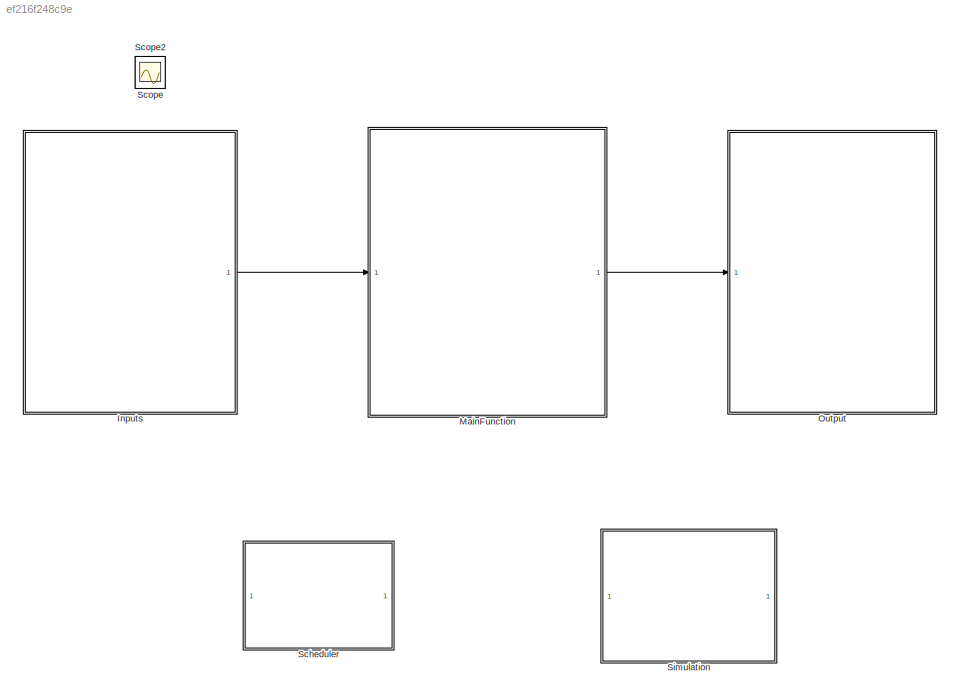
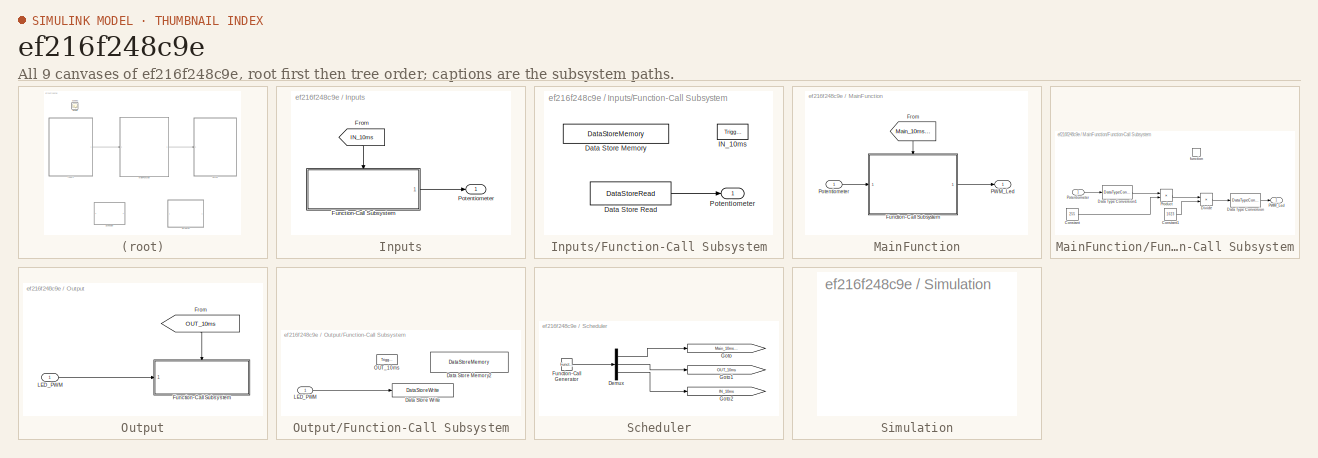
[diagram: thumbnail index - all 9 canvases of the model, root first then tree order]
MODEL slx_ef216f248c9e
KIND model
CONFIG AbsTol = auto
CONFIG FixedStep = auto
CONFIG MaxStep = auto
CONFIG MinStep = auto
CONFIG RelTol = 1e-3
CONFIG SampleTimeConstraint = Unconstrained
CONFIG Solver = FixedStepAuto
CONFIG SolverMode = Auto
CONFIG SolverName = FixedStepAuto
CONFIG StartTime = 0.0
CONFIG StopTime = inf
BLOCK [SubSystem] Inputs
  Ports = [0, 1]
  RequestExecContextInheritance = off
  Variant = off
BLOCK [From] Inputs/From
  GotoTag = IN_10ms
BLOCK [SubSystem] Inputs/Function-Call Subsystem
  Ports = [0, 1, 0, 1]
  RequestExecContextInheritance = off
  TreatAsAtomicUnit = on
  Variant = off
BLOCK [DataStoreMemory] Inputs/Function-Call Subsystem/Data Store Memory
  DataStoreName = In_Potentiometer_MBD
  OutDataTypeStr = uint32
  ReadBeforeWriteMsg = warning
  ShowAdditionalParam = off
  WriteAfterReadMsg = warning
  WriteAfterWriteMsg = warning
BLOCK [DataStoreRead] Inputs/Function-Call Subsystem/Data Store Read
  DataStoreName = In_Potentiometer_MBD
  Ports = [0, 1]
BLOCK [TriggerPort] Inputs/Function-Call Subsystem/IN_10ms
  Ports = []
  StatesWhenEnabling = held
  TriggerType = function-call
  VariantControl = Variant
BLOCK [Outport] Inputs/Function-Call Subsystem/Potentiometer
  IconDisplay = Port number
BLOCK [Outport] Inputs/Potentiometer
  IconDisplay = Port number
BLOCK [SubSystem] MainFunction
  Ports = [1, 1]
  RequestExecContextInheritance = off
  Variant = off
BLOCK [From] MainFunction/From
  GotoTag = Main_10msTask
  TagVisibility = global
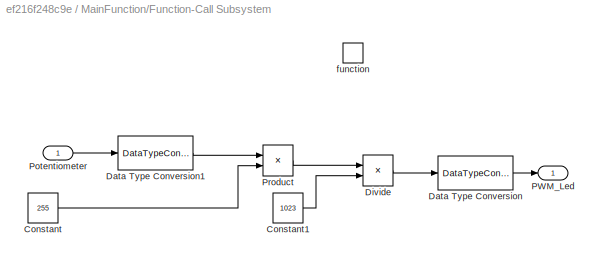
BLOCK [SubSystem] MainFunction/Function-Call Subsystem
  Ports = [1, 1, 0, 1]
  RequestExecContextInheritance = off
  TreatAsAtomicUnit = on
  Variant = off
BLOCK [Constant] MainFunction/Function-Call Subsystem/Constant
  Value = 255
BLOCK [Constant] MainFunction/Function-Call Subsystem/Constant1
  Value = 1023
BLOCK [DataTypeConversion] MainFunction/Function-Call Subsystem/Data Type Conversion
  OutDataTypeStr = uint8
  RndMeth = Floor
  SaturateOnIntegerOverflow = off
BLOCK [DataTypeConversion] MainFunction/Function-Call Subsystem/Data Type Conversion1
  OutDataTypeStr = double
  RndMeth = Floor
  SaturateOnIntegerOverflow = off
BLOCK [Product] MainFunction/Function-Call Subsystem/Divide
  InputSameDT = off
  Inputs = */
  OutDataTypeStr = double
  Ports = [2, 1]
  RndMeth = Floor
  SaturateOnIntegerOverflow = off
BLOCK [Outport] MainFunction/Function-Call Subsystem/PWM_Led
  IconDisplay = Port number
BLOCK [Inport] MainFunction/Function-Call Subsystem/Potentiometer
  IconDisplay = Port number
BLOCK [Product] MainFunction/Function-Call Subsystem/Product
  InputSameDT = off
  OutDataTypeStr = double
  Ports = [2, 1]
  RndMeth = Floor
  SaturateOnIntegerOverflow = off
BLOCK [TriggerPort] MainFunction/Function-Call Subsystem/function
  Ports = []
  StatesWhenEnabling = held
  TriggerType = function-call
  VariantControl = Variant
BLOCK [Outport] MainFunction/PWM_Led
  IconDisplay = Port number
BLOCK [Inport] MainFunction/Potentiometer
  IconDisplay = Port number
BLOCK [SubSystem] Output
  Ports = [1]
  RequestExecContextInheritance = off
  Variant = off
BLOCK [From] Output/From
  GotoTag = OUT_10ms
  TagVisibility = global
BLOCK [SubSystem] Output/Function-Call Subsystem
  Ports = [1, 0, 0, 1]
  RequestExecContextInheritance = off
  TreatAsAtomicUnit = on
  Variant = off
BLOCK [DataStoreMemory] Output/Function-Call Subsystem/Data Store Memory2
  DataStoreName = Out_PWMLed_MBD
  OutDataTypeStr = uint8
  ReadBeforeWriteMsg = warning
  ShowAdditionalParam = off
  WriteAfterReadMsg = warning
  WriteAfterWriteMsg = warning
BLOCK [DataStoreWrite] Output/Function-Call Subsystem/Data Store Write
  DataStoreName = Out_PWMLed_MBD
  Ports = [1]
BLOCK [Inport] Output/Function-Call Subsystem/LED_PWM
  IconDisplay = Port number
BLOCK [TriggerPort] Output/Function-Call Subsystem/OUT_10ms
  Ports = []
  StatesWhenEnabling = held
  TriggerType = function-call
  VariantControl = Variant
BLOCK [Inport] Output/LED_PWM
  IconDisplay = Port number
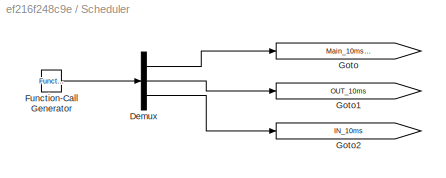
BLOCK [SubSystem] Scheduler
  Ports = []
  RequestExecContextInheritance = off
  Variant = off
BLOCK [Demux] Scheduler/Demux
  DisplayOption = bar
  Outputs = 3
  Ports = [1, 3]
BLOCK [Reference] Scheduler/Function-Call Generator  REF=simulink/Ports &
Subsystems/Function-Call
Generator
  Ports = [0, 1]
  SourceBlock = simulink/Ports &\nSubsystems/Function-Call\nGenerator
  SourceType = Function-Call Generator
BLOCK [Goto] Scheduler/Goto
  GotoTag = Main_10msTask
  TagVisibility = global
BLOCK [Goto] Scheduler/Goto1
  GotoTag = OUT_10ms
  TagVisibility = global
BLOCK [Goto] Scheduler/Goto2
  GotoTag = IN_10ms
  TagVisibility = global
BLOCK [Scope] Scope
  IOType = viewer
  Ports = []
  ScopeSpecificationString = Simulink.scopes.TimeScopeBlockCfg('CurrentConfiguration', extmgr.ConfigurationSet(extmgr.Configuration('Core','General UI',true),extmgr.Configuration('Core','Source UI',true),extmgr.Configuration('Sources','WiredSimulink',true,'DataLoggingSaveFormat','StructureWithTime','DataLoggingLimitDataPoints',true,'DataLoggingDecimation','1','DataLoggingDecimateData',true),extmgr.Configuration('Visuals','Tim...<+1665ch>
BLOCK [Scope] Scope2
  IOType = viewer
  Ports = []
  ScopeSpecificationString = C++SS(StrPVP('Location','[757, 326, 1081, 565]'),StrPVP('Open','off'),MxPVP('AxesTitles',24,'struct(''axes1'',''%<SignalLabel>'')'),MxPVP('ScopeGraphics',28,'struct(''FigureColor'',''[0.5 0.5 0.5]'',''AxesColor'',''[0 0 0]'',''AxesTickColor'',''[1 1 1]'',''LineColors'',''[1 1 0;1 0 1;0 1 1;1 0 0;0 1 0;0 0 1]'',''LineStyles'',''-|-|-|-|-|-'',''LineWidths'',''[0.5 0.5 0.5 0.5 0.5 0.5]'',''MarkerStyl...<+244ch>
BLOCK [SubSystem] Simulation
  Commented = on
  Ports = []
  RequestExecContextInheritance = off
  Variant = off
LINE Inputs/From:1 -> Inputs/Function-Call Subsystem:trigger
LINE Inputs/Function-Call Subsystem/Data Store Read:1 -> Inputs/Function-Call Subsystem/Potentiometer:1
LINE Inputs/Function-Call Subsystem:1 -> Inputs/Potentiometer:1
LINE Inputs:1 -> MainFunction:1
LINE MainFunction/From:1 -> MainFunction/Function-Call Subsystem:trigger
LINE MainFunction/Function-Call Subsystem/Constant1:1 -> MainFunction/Function-Call Subsystem/Divide:2
LINE MainFunction/Function-Call Subsystem/Constant:1 -> MainFunction/Function-Call Subsystem/Product:2
LINE MainFunction/Function-Call Subsystem/Data Type Conversion1:1 -> MainFunction/Function-Call Subsystem/Product:1
LINE MainFunction/Function-Call Subsystem/Data Type Conversion:1 -> MainFunction/Function-Call Subsystem/PWM_Led:1
LINE MainFunction/Function-Call Subsystem/Divide:1 -> MainFunction/Function-Call Subsystem/Data Type Conversion:1
LINE MainFunction/Function-Call Subsystem/Potentiometer:1 -> MainFunction/Function-Call Subsystem/Data Type Conversion1:1
LINE MainFunction/Function-Call Subsystem/Product:1 -> MainFunction/Function-Call Subsystem/Divide:1
LINE MainFunction/Function-Call Subsystem:1 -> MainFunction/PWM_Led:1
LINE MainFunction/Potentiometer:1 -> MainFunction/Function-Call Subsystem:1
LINE MainFunction:1 -> Output:1
LINE Output/From:1 -> Output/Function-Call Subsystem:trigger
LINE Output/Function-Call Subsystem/LED_PWM:1 -> Output/Function-Call Subsystem/Data Store Write:1
LINE Output/LED_PWM:1 -> Output/Function-Call Subsystem:1
LINE Scheduler/Demux:1 -> Scheduler/Goto:1
LINE Scheduler/Demux:2 -> Scheduler/Goto1:1
LINE Scheduler/Demux:3 -> Scheduler/Goto2:1
LINE Scheduler/Function-Call Generator:1 -> Scheduler/Demux:1
